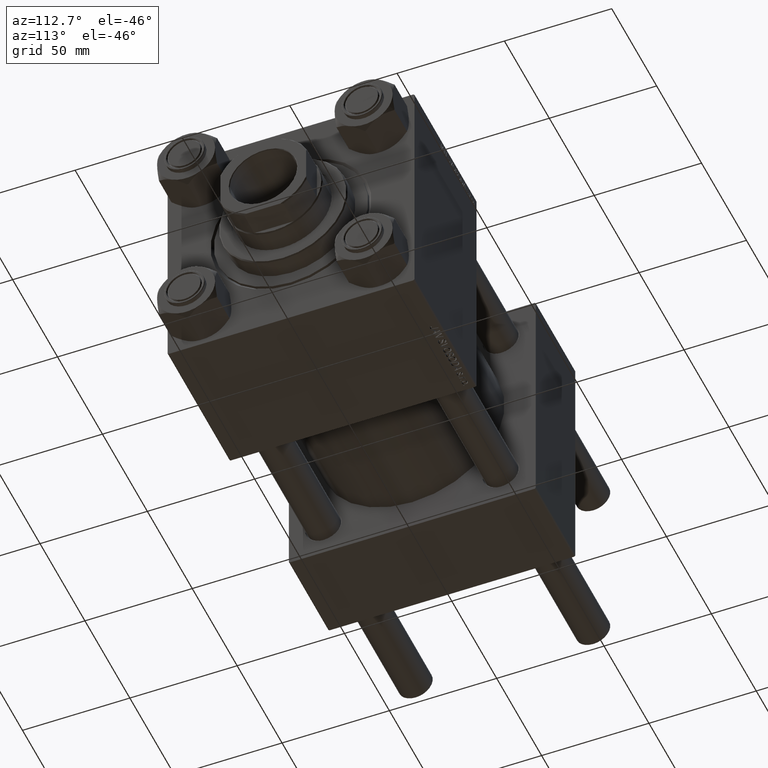
[diagram: clean part render]
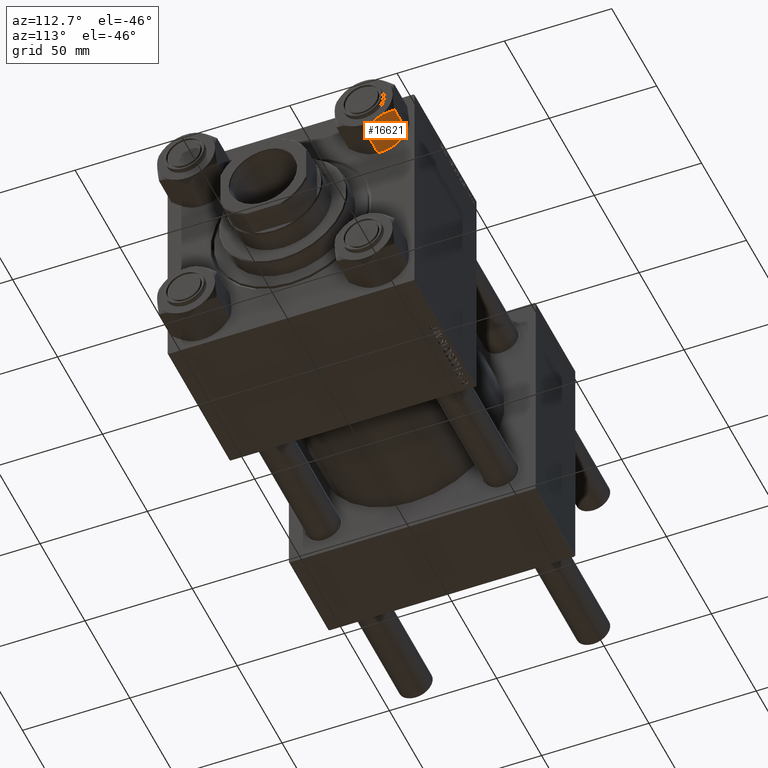
[diagram: same view with one face highlighted and labeled with its STEP entity id]
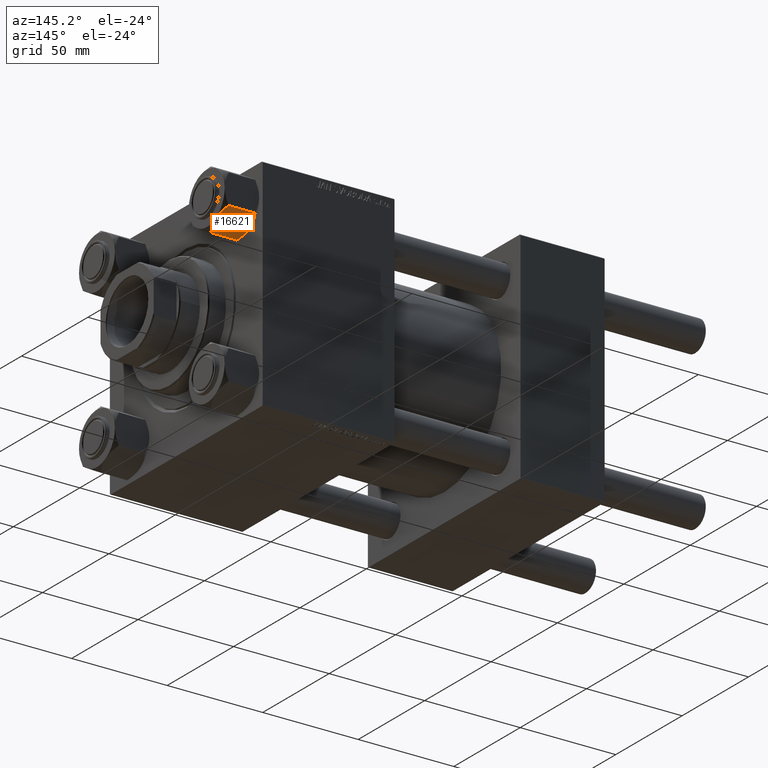
[diagram: same view with one face highlighted and labeled with its STEP entity id]
A machine part, auxiliary view. The second image highlights one B-rep face of the part: STEP entity #16621.
A second angle (auxiliary view) of the same face is appended — the face is thin or edge-on in the first view.
In plain terms, the highlighted planar face has unit normal (0, -0.5, 0.866).
Its self-contained STEP definition (entity closure, byte-faithful):
#276 = CARTESIAN_POINT ( 'NONE',  ( 9.114548888011798411, -11.26777185211902754, -0.9142282604026962245 ) ) ;
#466 = CARTESIAN_POINT ( 'NONE',  ( 15.62000000000000455, 5.009671660077301770E-15, -18.00000000000000000 ) ) ;
#790 = CARTESIAN_POINT ( 'NONE',  ( 7.810000000000011156, -13.52731680711292839, -16.00000000000000000 ) ) ;
#1205 = CARTESIAN_POINT ( 'NONE',  ( 15.62000000000000455, 5.009671660077301770E-15, -1.999999999999998224 ) ) ;
#1278 = DIRECTION ( 'NONE',  ( -0.4999999999999996669, -0.8660254037844388186, 0.000000000000000000 ) ) ;
#1957 = VERTEX_POINT ( 'NONE', #16929 ) ;
#2205 = ORIENTED_EDGE ( 'NONE', *, *, #49003, .F. ) ;
#2311 = LINE ( 'NONE', #40910, #39998 ) ;
#2334 = VERTEX_POINT ( 'NONE', #9517 ) ;
#2607 = VERTEX_POINT ( 'NONE', #790 ) ;
#2934 = CARTESIAN_POINT ( 'NONE',  ( 14.92394044919338292, -1.205610507090638661, -1.434462921875003349 ) ) ;
#3431 = CARTESIAN_POINT ( 'NONE',  ( 7.903528262322689457, -13.36532110482641755, -16.00000000000000000 ) ) ;
#3539 = B_SPLINE_CURVE_WITH_KNOTS ( 'NONE', 3,
 ( #31134, #46587, #42016, #22732, #22990, #38481, #31379, #3431 ),
 .UNSPECIFIED., .F., .F.,
 ( 4, 2, 2, 4 ),
 ( 0.007890825462474417018, 0.01181022244528552936, 0.01376992093669108033, 0.01572961942809663477 ),
 .UNSPECIFIED. ) ;
#4567 = CARTESIAN_POINT ( 'NONE',  ( 7.810000000000011156, -13.52731680711292839, -1.999999999999998224 ) ) ;
#4583 = EDGE_CURVE ( 'NONE', #46194, #2334, #3539, .T. ) ;
#5003 = LINE ( 'NONE', #1205, #9310 ) ;
#5041 = CARTESIAN_POINT ( 'NONE',  ( 13.36540581434587693, -3.905071680002321965, -17.61639331488793303 ) ) ;
#6071 = EDGE_CURVE ( 'NONE', #16580, #1957, #45217, .T. ) ;
#6394 = CARTESIAN_POINT ( 'NONE',  ( 15.52647173767732447, -0.1619957022865100571, -2.000000000000000000 ) ) ;
#6950 = LINE ( 'NONE', #21452, #19579 ) ;
#6964 = B_SPLINE_CURVE_WITH_KNOTS ( 'NONE', 3,
 ( #20783, #26043, #29851, #5041, #21974, #48182, #33663, #41514 ),
 .UNSPECIFIED., .F., .F.,
 ( 4, 2, 2, 4 ),
 ( 4.472842641941628495E-07, 0.003945636373369309190, 0.005918230917921863538, 0.007890825462474417018 ),
 .UNSPECIFIED. ) ;
#7870 = CARTESIAN_POINT ( 'NONE',  ( 7.903528262322689457, -13.36532110482641755, -2.000000000000000000 ) ) ;
#8905 = VERTEX_POINT ( 'NONE', #4567 ) ;
#9310 = VECTOR ( 'NONE', #13609, 1000.000000000000000 ) ;
#9517 = CARTESIAN_POINT ( 'NONE',  ( 7.903528262322689457, -13.36532110482641755, -16.00000000000000000 ) ) ;
#10046 = DIRECTION ( 'NONE',  ( -0.000000000000000000, -0.000000000000000000, 1.000000000000000000 ) ) ;
#10800 = CARTESIAN_POINT ( 'NONE',  ( 15.52647173767732447, -0.1619957022865100571, -2.000000000000000000 ) ) ;
#10810 = CARTESIAN_POINT ( 'NONE',  ( 11.71500000000000341, -6.763658403556461529, -18.00000000000000000 ) ) ;
#11530 = VECTOR ( 'NONE', #17967, 1000.000000000000000 ) ;
#11623 = CARTESIAN_POINT ( 'NONE',  ( 15.62000000000000455, 5.009671660077301770E-15, -16.00000000000000000 ) ) ;
#11781 = VECTOR ( 'NONE', #1278, 1000.000000000000000 ) ;
#12142 = EDGE_CURVE ( 'NONE', #2607, #8905, #2311, .T. ) ;
#12780 = VERTEX_POINT ( 'NONE', #11623 ) ;
#13609 = DIRECTION ( 'NONE',  ( 0.4999999999999996669, 0.8660254037844388186, -0.000000000000000000 ) ) ;
#13848 = CARTESIAN_POINT ( 'NONE',  ( 14.30591678195076177, -2.276058899034901106, -0.9473872146228143887 ) ) ;
#14063 = DIRECTION ( 'NONE',  ( -0.4999999999999996669, -0.8660254037844388186, 0.000000000000000000 ) ) ;
#14100 = CARTESIAN_POINT ( 'NONE',  ( 13.99051971937274352, -2.822342635978013270, -0.7317196846281160960 ) ) ;
#14386 = CARTESIAN_POINT ( 'NONE',  ( 15.62000000000000455, 5.009671660077301770E-15, -1.999999999999998224 ) ) ;
#15431 = PLANE ( 'NONE',  #41762 ) ;
#15740 = CARTESIAN_POINT ( 'NONE',  ( 11.38181071908715225, -7.340759166634867050, -3.505022335738294014E-15 ) ) ;
#16580 = VERTEX_POINT ( 'NONE', #18738 ) ;
#16603 = ORIENTED_EDGE ( 'NONE', *, *, #39665, .F. ) ;
#16621 = ADVANCED_FACE ( 'NONE', ( #42610 ), #15431, .F. ) ;
#16929 = CARTESIAN_POINT ( 'NONE',  ( 11.71500000000000341, -6.763658403556461529, 0.000000000000000000 ) ) ;
#17660 = CARTESIAN_POINT ( 'NONE',  ( 12.37702203890362895, -5.617002596445054508, -3.293264098924719718E-15 ) ) ;
#17967 = DIRECTION ( 'NONE',  ( 0.4999999999999996669, 0.8660254037844388186, -0.000000000000000000 ) ) ;
#18738 = CARTESIAN_POINT ( 'NONE',  ( 7.903528262322689457, -13.36532110482641755, -2.000000000000000000 ) ) ;
#19579 = VECTOR ( 'NONE', #14063, 1000.000000000000000 ) ;
#19751 = DIRECTION ( 'NONE',  ( -0.8660254037844388186, 0.4999999999999996669, 0.000000000000000000 ) ) ;
#20169 = ORIENTED_EDGE ( 'NONE', *, *, #47735, .F. ) ;
#20327 = CARTESIAN_POINT ( 'NONE',  ( 15.62000000000000455, 5.009671660077301770E-15, -16.00000000000000000 ) ) ;
#20783 = CARTESIAN_POINT ( 'NONE',  ( 15.52647173767732447, -0.1619957022865100571, -16.00000000000000000 ) ) ;
#21452 = CARTESIAN_POINT ( 'NONE',  ( 15.62000000000000455, 5.009671660077301770E-15, -16.00000000000000000 ) ) ;
#21741 = CARTESIAN_POINT ( 'NONE',  ( 13.02784502466563232, -4.489744118371588932, -0.1971866459924588311 ) ) ;
#21974 = CARTESIAN_POINT ( 'NONE',  ( 13.04337073483128862, -4.462852799541083826, -17.75691532989870325 ) ) ;
#22732 = CARTESIAN_POINT ( 'NONE',  ( 9.439480280627272180, -10.70497417113491423, -17.26828031537188934 ) ) ;
#22878 = CARTESIAN_POINT ( 'NONE',  ( 10.38662926516872886, -9.064464007571844562, -0.2430846701013008038 ) ) ;
#22990 = CARTESIAN_POINT ( 'NONE',  ( 9.124083218049253929, -11.25125790807802773, -17.05261278537718894 ) ) ;
#23699 = ORIENTED_EDGE ( 'NONE', *, *, #28811, .F. ) ;
#25438 = DIRECTION ( 'NONE',  ( -0.000000000000000000, -0.000000000000000000, 1.000000000000000000 ) ) ;
#26043 = CARTESIAN_POINT ( 'NONE',  ( 14.92760668674625180, -1.199260397376456178, -16.58801072835992940 ) ) ;
#28811 = EDGE_CURVE ( 'NONE', #1957, #44495, #46343, .T. ) ;
#29668 = LINE ( 'NONE', #14386, #11530 ) ;
#29851 = CARTESIAN_POINT ( 'NONE',  ( 14.31545111198821196, -2.259544954993897736, -17.08577173959730189 ) ) ;
#30124 = CARTESIAN_POINT ( 'NONE',  ( 15.22736220980735666, -0.6800686015852323019, -1.706311779141444607 ) ) ;
#31134 = CARTESIAN_POINT ( 'NONE',  ( 11.71500000000000341, -6.763658403556461529, -18.00000000000000000 ) ) ;
#31275 = CARTESIAN_POINT ( 'NONE',  ( 11.71500000000000341, -6.763658403556461529, 0.000000000000000000 ) ) ;
#31379 = CARTESIAN_POINT ( 'NONE',  ( 8.202637790192657263, -12.84724820552769664, -16.29368822085855228 ) ) ;
#32515 = LINE ( 'NONE', #20327, #11781 ) ;
#32852 = ORIENTED_EDGE ( 'NONE', *, *, #6071, .F. ) ;
#33663 = CARTESIAN_POINT ( 'NONE',  ( 12.04818928091286168, -6.186557640478059561, -17.99999999999999289 ) ) ;
#34712 = EDGE_LOOP ( 'NONE', ( #20169, #41502, #16603, #23699, #32852, #41505, #49472, #39858, #36659, #2205 ) ) ;
#35012 = DIRECTION ( 'NONE',  ( -0.4999999999999996669, -0.8660254037844388186, 0.000000000000000000 ) ) ;
#35070 = CARTESIAN_POINT ( 'NONE',  ( 8.502393313253765683, -12.32805640973647421, -1.411989271640068599 ) ) ;
#36659 = ORIENTED_EDGE ( 'NONE', *, *, #4583, .F. ) ;
#37888 = EDGE_CURVE ( 'NONE', #2334, #2607, #6950, .T. ) ;
#38105 = CARTESIAN_POINT ( 'NONE',  ( 10.06459418565413166, -9.622245127110600649, -0.3836066851120626398 ) ) ;
#38481 = CARTESIAN_POINT ( 'NONE',  ( 8.506059550806629233, -12.32170630002229039, -16.56553707812498999 ) ) ;
#38695 = VERTEX_POINT ( 'NONE', #43383 ) ;
#39502 = VERTEX_POINT ( 'NONE', #42133 ) ;
#39665 = EDGE_CURVE ( 'NONE', #44495, #38695, #29668, .T. ) ;
#39858 = ORIENTED_EDGE ( 'NONE', *, *, #37888, .F. ) ;
#39998 = VECTOR ( 'NONE', #25438, 1000.000000000000000 ) ;
#40781 = CARTESIAN_POINT ( 'NONE',  ( 11.71500000000000341, -6.763658403556461529, 0.000000000000000000 ) ) ;
#40910 = CARTESIAN_POINT ( 'NONE',  ( 7.810000000000011156, -13.52731680711292839, -18.00000000000000000 ) ) ;
#41502 = ORIENTED_EDGE ( 'NONE', *, *, #50151, .T. ) ;
#41505 = ORIENTED_EDGE ( 'NONE', *, *, #45967, .F. ) ;
#41514 = CARTESIAN_POINT ( 'NONE',  ( 11.71500000000000341, -6.763658403556461529, -18.00000000000000000 ) ) ;
#41762 = AXIS2_PLACEMENT_3D ( 'NONE', #466, #19751, #35012 ) ;
#42016 = CARTESIAN_POINT ( 'NONE',  ( 10.40215497533438338, -9.037572688741336790, -17.80281335400754017 ) ) ;
#42133 = CARTESIAN_POINT ( 'NONE',  ( 15.52647173767732447, -0.1619957022865100571, -16.00000000000000000 ) ) ;
#42610 = FACE_OUTER_BOUND ( 'NONE', #34712, .T. ) ;
#43383 = CARTESIAN_POINT ( 'NONE',  ( 15.62000000000000455, 5.009671660077301770E-15, -1.999999999999998224 ) ) ;
#44495 = VERTEX_POINT ( 'NONE', #6394 ) ;
#45217 = B_SPLINE_CURVE_WITH_KNOTS ( 'NONE', 3,
 ( #7870, #35070, #276, #38105, #22878, #45717, #15740, #31275 ),
 .UNSPECIFIED., .F., .F.,
 ( 4, 2, 2, 4 ),
 ( 4.472842641884425184E-07, 0.003945636373369302251, 0.005918230917921857466, 0.007890825462474413549 ),
 .UNSPECIFIED. ) ;
#45324 = LINE ( 'NONE', #45585, #48455 ) ;
#45585 = CARTESIAN_POINT ( 'NONE',  ( 15.62000000000000455, 5.009671660077301770E-15, -18.00000000000000000 ) ) ;
#45717 = CARTESIAN_POINT ( 'NONE',  ( 11.04378428799595646, -7.926238119586001218, -0.05089381635301847701 ) ) ;
#45967 = EDGE_CURVE ( 'NONE', #8905, #16580, #5003, .T. ) ;
#46194 = VERTEX_POINT ( 'NONE', #10810 ) ;
#46343 = B_SPLINE_CURVE_WITH_KNOTS ( 'NONE', 3,
 ( #40781, #17660, #21741, #14100, #13848, #2934, #30124, #10800 ),
 .UNSPECIFIED., .F., .F.,
 ( 4, 2, 2, 4 ),
 ( 0.007890825462474413549, 0.01181022244528552242, 0.01376992093669107686, 0.01572961942809663130 ),
 .UNSPECIFIED. ) ;
#46587 = CARTESIAN_POINT ( 'NONE',  ( 11.05297796109638320, -7.910314210667877433, -17.99999999999999645 ) ) ;
#47735 = EDGE_CURVE ( 'NONE', #12780, #39502, #32515, .T. ) ;
#48182 = CARTESIAN_POINT ( 'NONE',  ( 12.38621571200406102, -5.601078687526928057, -17.94910618364698607 ) ) ;
#48455 = VECTOR ( 'NONE', #10046, 1000.000000000000000 ) ;
#49003 = EDGE_CURVE ( 'NONE', #39502, #46194, #6964, .T. ) ;
#49472 = ORIENTED_EDGE ( 'NONE', *, *, #12142, .F. ) ;
#50151 = EDGE_CURVE ( 'NONE', #12780, #38695, #45324, .T. ) ;